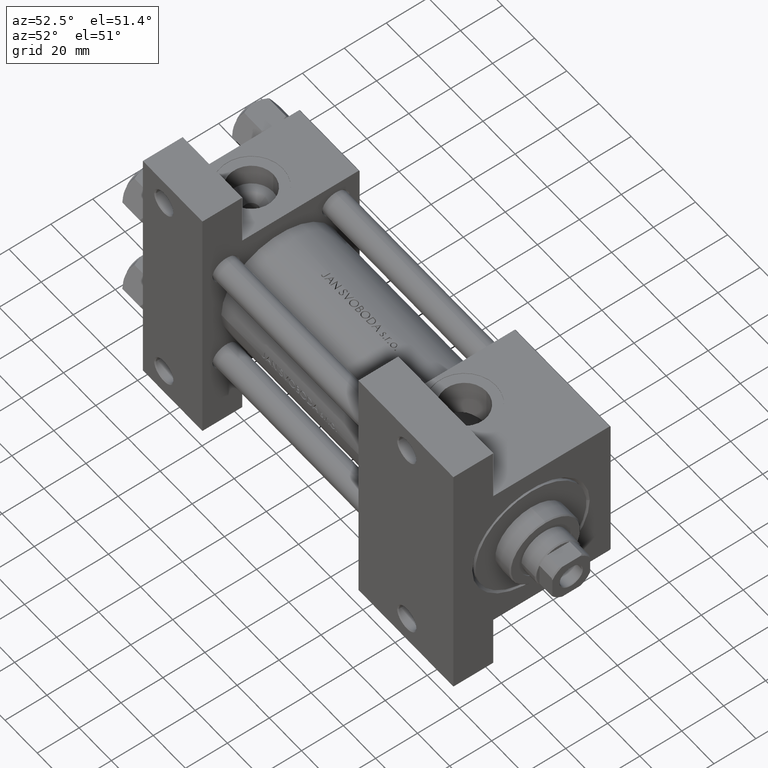
[diagram: clean part render]
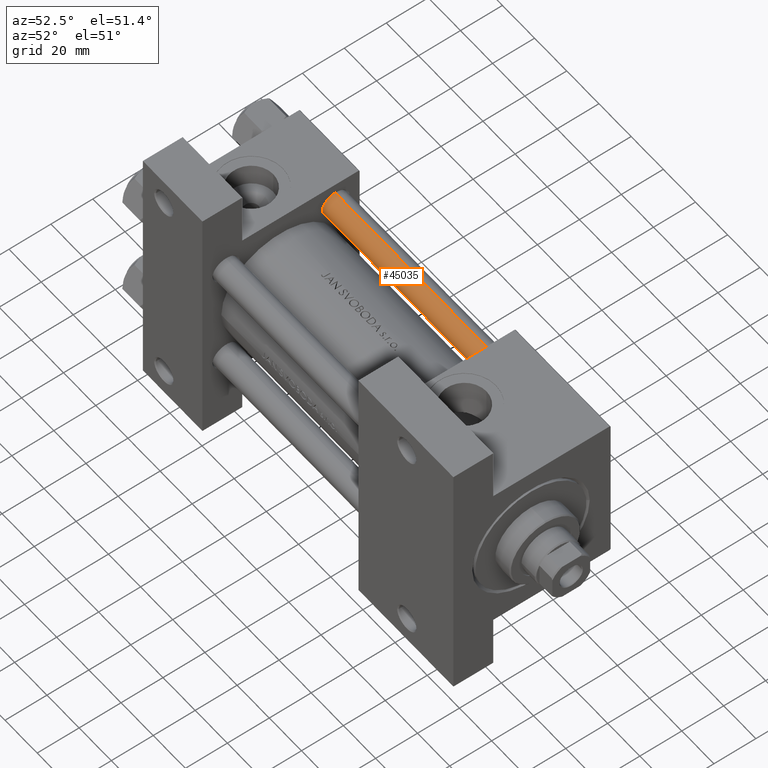
[diagram: same view with one face highlighted and labeled with its STEP entity id]
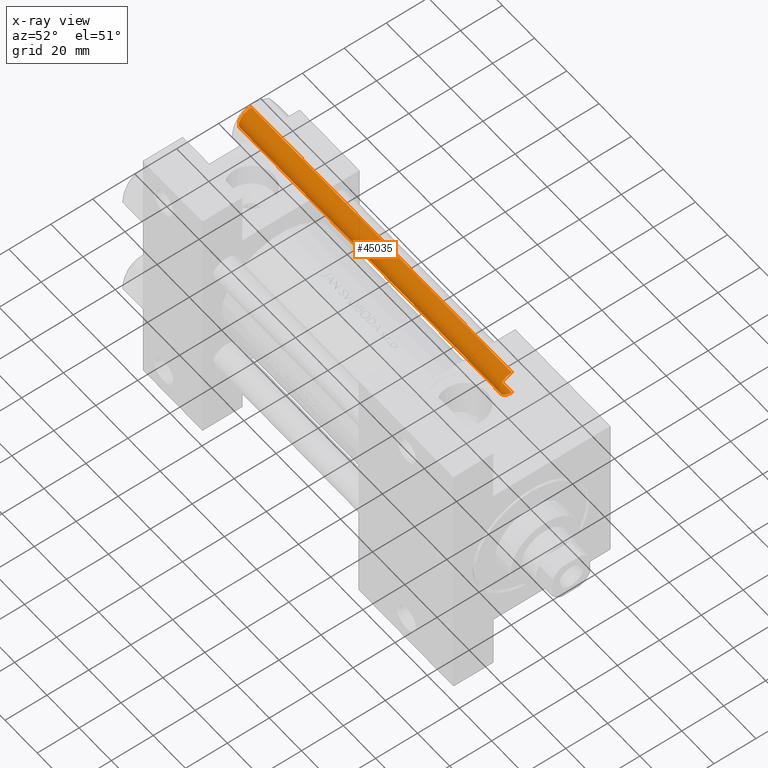
[diagram: x-ray of the same camera — body ghosted, the highlighted face saturated]
A machine part, auxiliary view. The second image highlights one B-rep face of the part: STEP entity #45035.
The next image is the same camera in x-ray: the body ghosted, the highlighted face saturated — about 0% of this face is hidden behind the body in this view.
In plain terms, the highlighted cylindrical surface (edge-blend (fillet) strip) has radius 6 mm, axis along (-1, -0, -0).
Its self-contained STEP definition (entity closure, byte-faithful):
#594 = DIRECTION ( 'NONE',  ( -1.000000000000000000, 0.000000000000000000, 0.000000000000000000 ) ) ;
#1103 = ORIENTED_EDGE ( 'NONE', *, *, #18574, .T. ) ;
#2574 = DIRECTION ( 'NONE',  ( -0.000000000000000000, -0.000000000000000000, -1.000000000000000000 ) ) ;
#6597 = CARTESIAN_POINT ( 'NONE',  ( -6.000000000000000888, 0.000000000000000000, 162.5000000000000284 ) ) ;
#6740 = VERTEX_POINT ( 'NONE', #6597 ) ;
#7360 = DIRECTION ( 'NONE',  ( -0.000000000000000000, -0.000000000000000000, -1.000000000000000000 ) ) ;
#7838 = CYLINDRICAL_SURFACE ( 'NONE', #29420, 6.000000000000000888 ) ;
#8117 = CARTESIAN_POINT ( 'NONE',  ( -6.000000000000000888, 0.000000000000000000, 0.5000000000000004441 ) ) ;
#9318 = EDGE_LOOP ( 'NONE', ( #38376, #27249, #1103, #34674 ) ) ;
#9592 = CARTESIAN_POINT ( 'NONE',  ( 0.000000000000000000, 0.000000000000000000, 162.5000000000000284 ) ) ;
#13552 = CIRCLE ( 'NONE', #41403, 6.000000000000000888 ) ;
#14964 = VERTEX_POINT ( 'NONE', #41178 ) ;
#16810 = CARTESIAN_POINT ( 'NONE',  ( -6.000000000000000888, 0.000000000000000000, 163.0000000000000000 ) ) ;
#17566 = EDGE_CURVE ( 'NONE', #39332, #6740, #13552, .T. ) ;
#17977 = DIRECTION ( 'NONE',  ( -0.000000000000000000, -0.000000000000000000, -1.000000000000000000 ) ) ;
#18459 = VERTEX_POINT ( 'NONE', #8117 ) ;
#18574 = EDGE_CURVE ( 'NONE', #6740, #18459, #39735, .T. ) ;
#20038 = VECTOR ( 'NONE', #2574, 1000.000000000000000 ) ;
#20845 = EDGE_CURVE ( 'NONE', #39332, #14964, #29735, .T. ) ;
#21902 = CIRCLE ( 'NONE', #46504, 6.000000000000000888 ) ;
#22123 = CARTESIAN_POINT ( 'NONE',  ( 6.000000000000000888, 7.347880794884120722E-16, 162.5000000000000284 ) ) ;
#22927 = CARTESIAN_POINT ( 'NONE',  ( 6.000000000000000888, 7.347880794884120722E-16, 163.0000000000000000 ) ) ;
#25975 = CARTESIAN_POINT ( 'NONE',  ( 0.000000000000000000, 0.000000000000000000, 0.5000000000000004441 ) ) ;
#27249 = ORIENTED_EDGE ( 'NONE', *, *, #17566, .T. ) ;
#28415 = EDGE_CURVE ( 'NONE', #18459, #14964, #21902, .T. ) ;
#29420 = AXIS2_PLACEMENT_3D ( 'NONE', #42459, #7360, #594 ) ;
#29735 = LINE ( 'NONE', #22927, #20038 ) ;
#30994 = FACE_OUTER_BOUND ( 'NONE', #9318, .T. ) ;
#32955 = DIRECTION ( 'NONE',  ( 1.000000000000000000, 0.000000000000000000, 0.000000000000000000 ) ) ;
#34674 = ORIENTED_EDGE ( 'NONE', *, *, #28415, .T. ) ;
#38376 = ORIENTED_EDGE ( 'NONE', *, *, #20845, .F. ) ;
#39227 = DIRECTION ( 'NONE',  ( 0.000000000000000000, 0.000000000000000000, -1.000000000000000000 ) ) ;
#39332 = VERTEX_POINT ( 'NONE', #22123 ) ;
#39726 = DIRECTION ( 'NONE',  ( 1.000000000000000000, 0.000000000000000000, 0.000000000000000000 ) ) ;
#39735 = LINE ( 'NONE', #16810, #43815 ) ;
#41165 = DIRECTION ( 'NONE',  ( -0.000000000000000000, -0.000000000000000000, 1.000000000000000000 ) ) ;
#41178 = CARTESIAN_POINT ( 'NONE',  ( 6.000000000000000888, 7.347880794884120722E-16, 0.5000000000000004441 ) ) ;
#41403 = AXIS2_PLACEMENT_3D ( 'NONE', #9592, #39227, #39726 ) ;
#42459 = CARTESIAN_POINT ( 'NONE',  ( 0.000000000000000000, 0.000000000000000000, 163.0000000000000000 ) ) ;
#43815 = VECTOR ( 'NONE', #17977, 1000.000000000000000 ) ;
#45035 = ADVANCED_FACE ( 'NONE', ( #30994 ), #7838, .T. ) ;
#46504 = AXIS2_PLACEMENT_3D ( 'NONE', #25975, #41165, #32955 ) ;